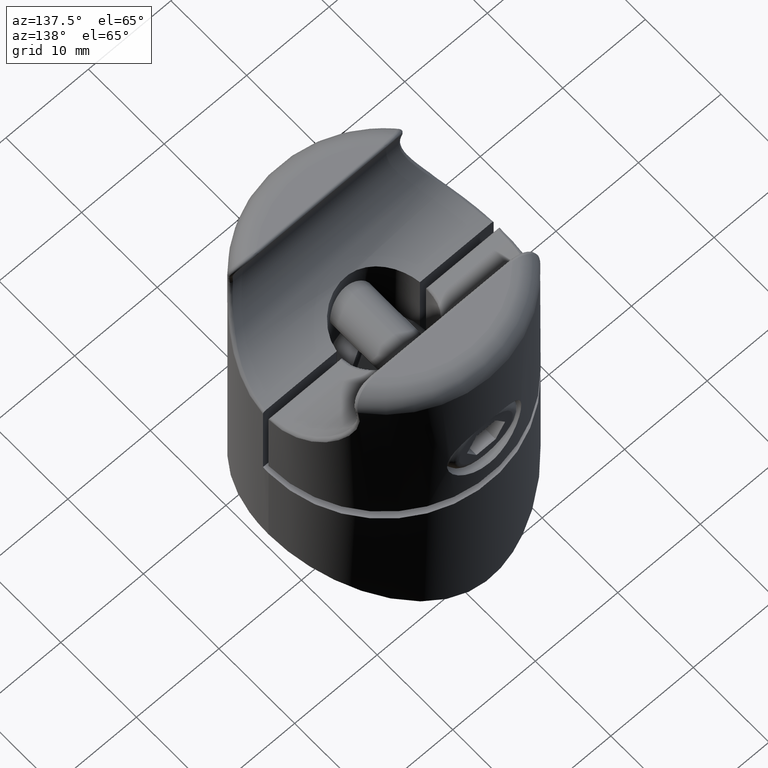
[diagram: clean part render]
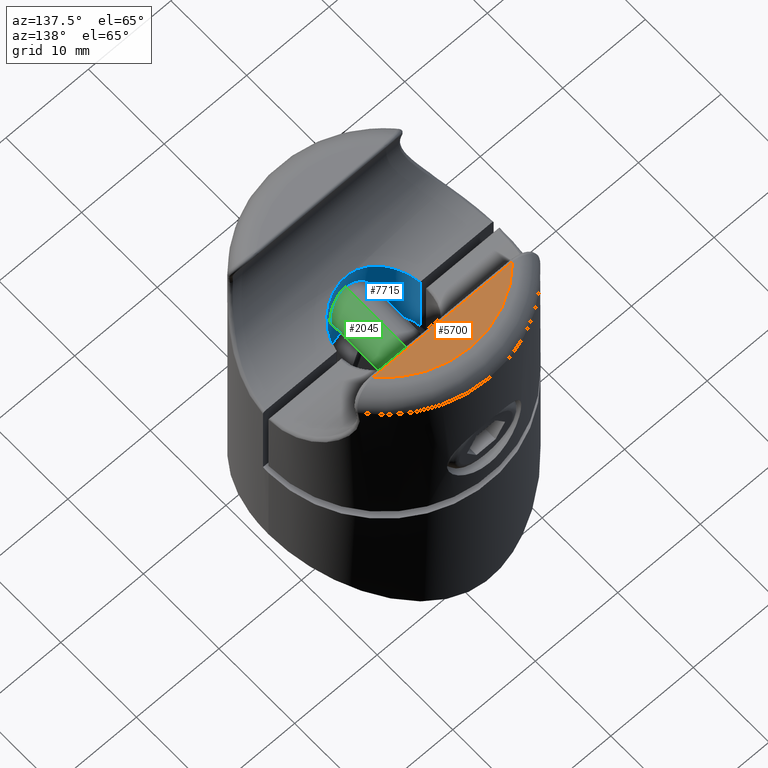
[diagram: same view with three faces highlighted in distinct colors, each labeled with its STEP entity id]
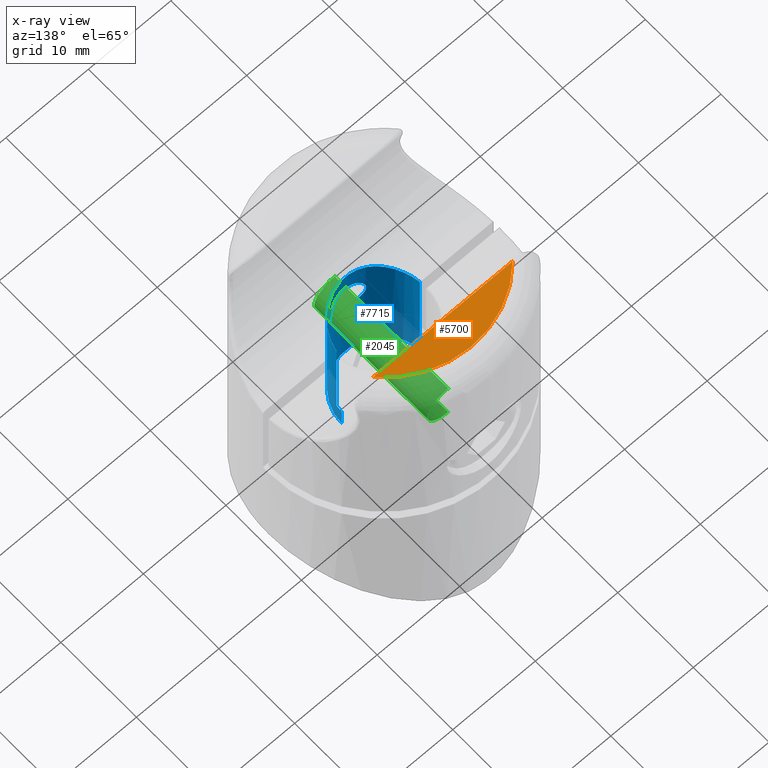
[diagram: x-ray of the same camera — body ghosted, the three highlighted faces saturated]
A machine part, auxiliary view with three faces highlighted in distinct colors.
The next image is the same camera in x-ray (body ghosted, the three faces saturated) — at least one of them is partly hidden behind the body in this view.
Their STEP definitions:

[orange] entity #5700 — the highlighted planar face has unit normal (0, 0, 1).
#964 = ORIENTED_EDGE ( 'NONE', *, *, #4711, .T. ) ;
#1218 = CARTESIAN_POINT ( 'NONE',  ( 8.466754833147170700, 8.532291603080610187, 11.50000000000000000 ) ) ;
#1510 = CARTESIAN_POINT ( 'NONE',  ( 8.875859768070236910, 8.532291603080610187, 11.50000000000000000 ) ) ;
#3239 = DIRECTION ( 'NONE',  ( 1.000000000000000000, -0.000000000000000000, -0.000000000000000000 ) ) ;
#3410 = EDGE_CURVE ( 'NONE', #9964, #18486, #16656, .T. ) ;
#3686 = DIRECTION ( 'NONE',  ( 1.000000000000000000, 0.000000000000000000, 0.000000000000000000 ) ) ;
#4711 = EDGE_CURVE ( 'NONE', #18486, #9964, #13640, .T. ) ;
#4983 = AXIS2_PLACEMENT_3D ( 'NONE', #11130, #14451, #12763 ) ;
#5700 = ADVANCED_FACE ( 'NONE', ( #19857 ), #15835, .T. ) ;
#5897 = VECTOR ( 'NONE', #3239, 1000.000000000000000 ) ;
#6545 = EDGE_LOOP ( 'NONE', ( #964, #18851 ) ) ;
#6853 = DIRECTION ( 'NONE',  ( 0.000000000000000000, 0.000000000000000000, 1.000000000000000000 ) ) ;
#8468 = CARTESIAN_POINT ( 'NONE',  ( 0.000000000000000000, 0.7500000000000000000, 11.50000000000000000 ) ) ;
#9964 = VERTEX_POINT ( 'NONE', #11361 ) ;
#11130 = CARTESIAN_POINT ( 'NONE',  ( 0.000000000000000000, 0.7500000000000000000, 11.50000000000000000 ) ) ;
#11361 = CARTESIAN_POINT ( 'NONE',  ( -8.466754833147170700, 8.532291603080610187, 11.50000000000000000 ) ) ;
#12763 = DIRECTION ( 'NONE',  ( 1.000000000000000000, 0.000000000000000000, -0.000000000000000000 ) ) ;
#13308 = AXIS2_PLACEMENT_3D ( 'NONE', #8468, #6853, #3686 ) ;
#13640 = CIRCLE ( 'NONE', #13308, 11.49999999999999822 ) ;
#14451 = DIRECTION ( 'NONE',  ( 0.000000000000000000, 0.000000000000000000, 1.000000000000000000 ) ) ;
#15835 = PLANE ( 'NONE',  #4983 ) ;
#16656 = LINE ( 'NONE', #1510, #5897 ) ;
#18486 = VERTEX_POINT ( 'NONE', #1218 ) ;
#18851 = ORIENTED_EDGE ( 'NONE', *, *, #3410, .T. ) ;
#19857 = FACE_OUTER_BOUND ( 'NONE', #6545, .T. ) ;

[blue] entity #7715 — the highlighted cylindrical surface (partial cylindrical patch) has radius 5.1 mm, axis along (0, 0, -1).
#25 = LINE ( 'NONE', #19126, #10806 ) ;
#326 = AXIS2_PLACEMENT_3D ( 'NONE', #6580, #9802, #11392 ) ;
#503 = VECTOR ( 'NONE', #18704, 1000.000000000000000 ) ;
#624 = CARTESIAN_POINT ( 'NONE',  ( -1.058324974039478006, -4.990330198489021818, 0.9310890432276512918 ) ) ;
#688 = ORIENTED_EDGE ( 'NONE', *, *, #18628, .F. ) ;
#762 = CARTESIAN_POINT ( 'NONE',  ( -0.9362209961879750519, -5.014983502759267964, 0.8652033509691706703 ) ) ;
#840 = CARTESIAN_POINT ( 'NONE',  ( -2.099970334657900395, -4.647593419675719595, 2.611134068806382214 ) ) ;
#853 = CARTESIAN_POINT ( 'NONE',  ( 5.939650175596017700E-16, -5.099999999999999645, 0.6500000000000054623 ) ) ;
#1048 = CARTESIAN_POINT ( 'NONE',  ( -1.522775329754811224, -4.876770204915720441, 7.184743354017673056 ) ) ;
#1079 = CARTESIAN_POINT ( 'NONE',  ( 1.884590587738744327, -4.739371806368707141, 1.813249709323770942 ) ) ;
#1087 = VERTEX_POINT ( 'NONE', #15431 ) ;
#1113 = CARTESIAN_POINT ( 'NONE',  ( 4.727944327428127202, -1.936726784486503261, 5.955879604610769817 ) ) ;
#1134 = CARTESIAN_POINT ( 'NONE',  ( 5.099999999999999645, 6.245698675651500839E-16, 18.75000000000000000 ) ) ;
#1173 = B_SPLINE_CURVE_WITH_KNOTS ( 'NONE', 3,
 ( #19111, #2745, #4759, #20372, #10795, #3142, #12415, #9206, #17581, #12754, #1609, #12824, #12348, #4827, #7999, #9070, #20230, #4357, #15548, #1079, #17243, #5972, #19176, #3211, #9546, #1549, #20301, #10729, #15620, #17174 ),
 .UNSPECIFIED., .F., .F.,
 ( 4, 2, 2, 2, 2, 2, 2, 2, 2, 2, 2, 2, 2, 2, 4 ),
 ( 1.117477454623231441E-20, 0.0004150183347824037473, 0.0008300366695648074946, 0.001245055004347211296, 0.001660073339129614989, 0.002490110008694422158, 0.002905128343476825418, 0.003320146678259227810, 0.003735165013041630202, 0.004150183347824031727, 0.004565201682606433685, 0.004980220017388833909, 0.005395238352171235867, 0.005810256686953637825, 0.006640293356518440875 ),
 .UNSPECIFIED. ) ;
#1184 = CARTESIAN_POINT ( 'NONE',  ( -4.926727477309573722, -1.353437353269471011, 5.847430210650401250 ) ) ;
#1203 = DIRECTION ( 'NONE',  ( -1.421085471520200372E-14, 1.000000000000000000, -1.700709290173340409E-16 ) ) ;
#1375 = CARTESIAN_POINT ( 'NONE',  ( 5.044551516240069589, -0.7499999999999997780, -5.749999999999994671 ) ) ;
#1549 = CARTESIAN_POINT ( 'NONE',  ( 1.056860682995336864, -4.990655327738765301, 0.9301848990327671318 ) ) ;
#1609 = CARTESIAN_POINT ( 'NONE',  ( 1.832703404059226937, -4.760686105595080875, 3.811018035582158348 ) ) ;
#1660 = ORIENTED_EDGE ( 'NONE', *, *, #12442, .F. ) ;
#1829 = DIRECTION ( 'NONE',  ( 0.000000000000000000, 0.000000000000000000, -1.000000000000000000 ) ) ;
#2233 = EDGE_CURVE ( 'NONE', #13168, #3237, #3380, .T. ) ;
#2294 = CARTESIAN_POINT ( 'NONE',  ( -1.668019159702798238, -4.820190265308835542, 4.033069915082044155 ) ) ;
#2361 = CARTESIAN_POINT ( 'NONE',  ( -1.582735638642827958, -4.849241594949084799, 1.363046768596536173 ) ) ;
#2570 = CARTESIAN_POINT ( 'NONE',  ( 1.227535980252621339, -4.959571814902814069, 7.239530723996619344 ) ) ;
#2638 = CARTESIAN_POINT ( 'NONE',  ( 3.113303434567240124, -4.050356833406222989, 6.710049737090006516 ) ) ;
#2745 = CARTESIAN_POINT ( 'NONE',  ( 0.1404383798457451149, -5.100000000000000533, 4.849999999999992539 ) ) ;
#2846 = CARTESIAN_POINT ( 'NONE',  ( 0.6239015136069436807, -5.070990442833838152, 7.314305193080004486 ) ) ;
#3142 = CARTESIAN_POINT ( 'NONE',  ( 0.9368681101514473308, -5.014857309744007452, 4.634460374151095685 ) ) ;
#3211 = CARTESIAN_POINT ( 'NONE',  ( 1.388384815992148136, -4.908407356490961604, 1.168602447833218649 ) ) ;
#3237 = VERTEX_POINT ( 'NONE', #10203 ) ;
#3254 = B_SPLINE_CURVE_WITH_KNOTS ( 'NONE', 3,
 ( #13655, #18195, #10148, #13513, #19856, #762, #624, #11964, #3970, #2361, #8614, #10220, #18265, #13587, #18337, #15193, #840, #5588, #16791, #10288, #11899, #2294, #16588, #7215, #15126, #5514, #5316, #18401, #18132, #5379, #8839, #10425 ),
 .UNSPECIFIED., .F., .F.,
 ( 4, 2, 2, 2, 2, 2, 2, 2, 2, 2, 2, 2, 2, 2, 2, 4 ),
 ( 0.006640293356518440875, 0.007054996195820101464, 0.007469699035121762053, 0.007884401874423421774, 0.008299104713725082363, 0.008713807553026742952, 0.009128510392328403542, 0.009543213231630064131, 0.009957916070931724720, 0.01078732174953504590, 0.01120202458883670649, 0.01161672742813836708, 0.01203143026744002766, 0.01244613310674168825, 0.01286083594604334884, 0.01327553878534500943 ),
 .UNSPECIFIED. ) ;
#3380 = CIRCLE ( 'NONE', #6729, 5.099999999999999645 ) ;
#3815 = EDGE_LOOP ( 'NONE', ( #14014, #688 ) ) ;
#3951 = B_SPLINE_CURVE_WITH_KNOTS ( 'NONE', 3,
 ( #18256, #20471, #12168, #1113, #20405, #15590, #9244, #7703, #12451, #2638, #15524, #4457, #7564, #18876, #2570, #2846, #14069, #18811, #17278, #9306, #1048, #9042, #20201, #10697, #17210, #13798, #15381, #5792, #6013, #1184, #17002, #7423 ),
 .UNSPECIFIED., .F., .F.,
 ( 4, 2, 2, 2, 2, 2, 2, 2, 2, 2, 2, 2, 2, 2, 2, 4 ),
 ( 0.01705794424482550212, 0.01798200267743625333, 0.01890606111004700454, 0.01983011954265775229, 0.02075417797526850350, 0.02167823640787925471, 0.02260229484049000592, 0.02352635327310075714, 0.02445041170571150835, 0.02537447013832225956, 0.02629852857093301077, 0.02814664543615451320, 0.02907070386876526441, 0.02999476230137601909, 0.03091882073398677377, 0.03184287916659752499 ),
 .UNSPECIFIED. ) ;
#3970 = CARTESIAN_POINT ( 'NONE',  ( -1.389548159784840697, -4.908090469790977295, 1.169542066498068689 ) ) ;
#4357 = CARTESIAN_POINT ( 'NONE',  ( 2.031645188625957665, -4.677959186847076900, 2.200916204441360602 ) ) ;
#4457 = CARTESIAN_POINT ( 'NONE',  ( 2.360781317144719171, -4.530418230611480190, 6.971464051804823647 ) ) ;
#4475 = EDGE_CURVE ( 'NONE', #18268, #1087, #3951, .T. ) ;
#4759 = CARTESIAN_POINT ( 'NONE',  ( 0.2782371955955479370, -5.094213806708957293, 4.836056520450588536 ) ) ;
#4827 = CARTESIAN_POINT ( 'NONE',  ( 2.086204692278037953, -4.653884293845816700, 3.027417859520242338 ) ) ;
#5316 = CARTESIAN_POINT ( 'NONE',  ( -0.9377519193827802413, -5.014723810352888833, 4.634116699090348845 ) ) ;
#5379 = CARTESIAN_POINT ( 'NONE',  ( -0.2799381805258382427, -5.094112362984466458, 4.835809135821095950 ) ) ;
#5514 = CARTESIAN_POINT ( 'NONE',  ( -1.057777670376125689, -4.990441717583460779, 4.569209742283733000 ) ) ;
#5588 = CARTESIAN_POINT ( 'NONE',  ( -2.100059186464586780, -4.647553272160611648, 3.026383839078404137 ) ) ;
#5792 = CARTESIAN_POINT ( 'NONE',  ( -4.604010879354332175, -2.214153063484531003, 6.022374473885055757 ) ) ;
#5972 = CARTESIAN_POINT ( 'NONE',  ( 1.668221805365019517, -4.820118242819451559, 1.467212146478755308 ) ) ;
#6013 = CARTESIAN_POINT ( 'NONE',  ( -4.728566261257086900, -1.935225417826927918, 5.955544695340035943 ) ) ;
#6470 = CARTESIAN_POINT ( 'NONE',  ( -5.044551516240069589, -0.7499999999999997780, -5.749999999999998224 ) ) ;
#6542 = LINE ( 'NONE', #13925, #12809 ) ;
#6580 = CARTESIAN_POINT ( 'NONE',  ( 0.000000000000000000, 0.000000000000000000, -8.249999999999998224 ) ) ;
#6729 = AXIS2_PLACEMENT_3D ( 'NONE', #12335, #15400, #1203 ) ;
#6899 = ORIENTED_EDGE ( 'NONE', *, *, #4475, .F. ) ;
#7215 = CARTESIAN_POINT ( 'NONE',  ( -1.389366842906204491, -4.908136053044440672, 4.330581406184570881 ) ) ;
#7232 = ORIENTED_EDGE ( 'NONE', *, *, #2233, .T. ) ;
#7423 = CARTESIAN_POINT ( 'NONE',  ( -5.044551516240070477, -0.7499999999999995559, 5.781304442673956601 ) ) ;
#7564 = CARTESIAN_POINT ( 'NONE',  ( 2.092785570995263633, -4.660690296668343002, 7.049738328825301714 ) ) ;
#7703 = CARTESIAN_POINT ( 'NONE',  ( 3.767606572484827776, -3.450124305703898386, 6.433902054928879011 ) ) ;
#7715 = ADVANCED_FACE ( 'NONE', ( #18352, #14112 ), #15343, .F. ) ;
#7729 = CARTESIAN_POINT ( 'NONE',  ( -5.099999999999999645, 0.000000000000000000, -8.249999999999998224 ) ) ;
#7744 = ORIENTED_EDGE ( 'NONE', *, *, #16393, .T. ) ;
#7999 = CARTESIAN_POINT ( 'NONE',  ( 2.099911178458104377, -4.647620149280246693, 2.890101151305006333 ) ) ;
#8084 = EDGE_CURVE ( 'NONE', #11790, #16244, #1173, .T. ) ;
#8214 = DIRECTION ( 'NONE',  ( 0.000000000000000000, 0.000000000000000000, -1.000000000000000000 ) ) ;
#8248 = ORIENTED_EDGE ( 'NONE', *, *, #12521, .T. ) ;
#8332 = CARTESIAN_POINT ( 'NONE',  ( -5.044551516240069589, -0.7499999999999997780, 18.75000000000000000 ) ) ;
#8453 = DIRECTION ( 'NONE',  ( 0.000000000000000000, 1.176083712526648949E-16, 1.000000000000000000 ) ) ;
#8527 = LINE ( 'NONE', #1134, #503 ) ;
#8614 = CARTESIAN_POINT ( 'NONE',  ( -1.668590006092086631, -4.819986903224767971, 1.467730190361120624 ) ) ;
#8723 = EDGE_CURVE ( 'NONE', #14994, #15240, #6542, .T. ) ;
#8839 = CARTESIAN_POINT ( 'NONE',  ( -0.1403316190825426579, -5.099999999999999645, 4.849999999999993427 ) ) ;
#9042 = CARTESIAN_POINT ( 'NONE',  ( -2.372516420328416142, -4.555007703739528679, 6.983669603769895318 ) ) ;
#9044 = EDGE_CURVE ( 'NONE', #18268, #13168, #25, .T. ) ;
#9070 = CARTESIAN_POINT ( 'NONE',  ( 2.100087969366200902, -4.647540266671436271, 2.612574343975953450 ) ) ;
#9206 = CARTESIAN_POINT ( 'NONE',  ( 1.284107575974287485, -4.937072472589844274, 4.417267665974953239 ) ) ;
#9207 = ORIENTED_EDGE ( 'NONE', *, *, #9044, .T. ) ;
#9244 = CARTESIAN_POINT ( 'NONE',  ( 4.142633997710905014, -2.989448205078897303, 6.257412515259235697 ) ) ;
#9306 = CARTESIAN_POINT ( 'NONE',  ( -1.223365334167772378, -4.960636983959708424, 7.240236172888097066 ) ) ;
#9546 = CARTESIAN_POINT ( 'NONE',  ( 1.283833561704537551, -4.937141530216621277, 1.082530992548649706 ) ) ;
#9684 = CARTESIAN_POINT ( 'NONE',  ( -5.099999999999999645, -2.040180025833936330E-31, -5.749999999999998224 ) ) ;
#9755 = DIRECTION ( 'NONE',  ( -1.000000000000000000, 0.000000000000000000, 0.000000000000000000 ) ) ;
#9802 = DIRECTION ( 'NONE',  ( 0.000000000000000000, 0.000000000000000000, 1.000000000000000000 ) ) ;
#10148 = CARTESIAN_POINT ( 'NONE',  ( -0.2784871846559245911, -5.094219738875483294, 0.6639266523821445443 ) ) ;
#10203 = CARTESIAN_POINT ( 'NONE',  ( 5.099999999999999645, 6.245698675651498867E-16, -5.749999999999998224 ) ) ;
#10220 = CARTESIAN_POINT ( 'NONE',  ( -1.819719935794367638, -4.764985384128812562, 1.693104627498889903 ) ) ;
#10288 = CARTESIAN_POINT ( 'NONE',  ( -1.885593958338568799, -4.738964402956085564, 3.684507666911090329 ) ) ;
#10425 = CARTESIAN_POINT ( 'NONE',  ( 3.252614275303981863E-16, -5.099999999999999645, 4.849999999999992539 ) ) ;
#10697 = CARTESIAN_POINT ( 'NONE',  ( -3.562681131281607350, -3.661235580826103231, 6.525572248819432986 ) ) ;
#10729 = CARTESIAN_POINT ( 'NONE',  ( 0.5560134727191041737, -5.076041175195391553, 0.7065630019784056026 ) ) ;
#10795 = CARTESIAN_POINT ( 'NONE',  ( 0.6831036484005171827, -5.055678500305725187, 4.740548206677330789 ) ) ;
#10806 = VECTOR ( 'NONE', #8214, 1000.000000000000000 ) ;
#11123 = AXIS2_PLACEMENT_3D ( 'NONE', #19691, #8453, #14897 ) ;
#11392 = DIRECTION ( 'NONE',  ( 1.000000000000000000, 0.000000000000000000, 0.000000000000000000 ) ) ;
#11531 = ORIENTED_EDGE ( 'NONE', *, *, #8723, .F. ) ;
#11790 = VERTEX_POINT ( 'NONE', #19190 ) ;
#11859 = CIRCLE ( 'NONE', #326, 5.099999999999999645 ) ;
#11881 = VERTEX_POINT ( 'NONE', #6470 ) ;
#11899 = CARTESIAN_POINT ( 'NONE',  ( -1.819802055341623426, -4.764959872893800075, 3.806823922656311865 ) ) ;
#11964 = CARTESIAN_POINT ( 'NONE',  ( -1.284051158378101132, -4.937069967429568607, 1.082756333942149984 ) ) ;
#12168 = CARTESIAN_POINT ( 'NONE',  ( 4.926231638191224782, -1.355215867635509275, 5.847705120674942414 ) ) ;
#12335 = CARTESIAN_POINT ( 'NONE',  ( 0.000000000000000000, 0.000000000000000000, -5.749999999999998224 ) ) ;
#12348 = CARTESIAN_POINT ( 'NONE',  ( 2.031646802211388270, -4.677958989736007211, 3.299201199860249289 ) ) ;
#12415 = CARTESIAN_POINT ( 'NONE',  ( 1.056955091078038755, -4.990637514558952326, 4.569769126049879837 ) ) ;
#12442 = EDGE_CURVE ( 'NONE', #15240, #16817, #11859, .T. ) ;
#12451 = CARTESIAN_POINT ( 'NONE',  ( 3.562024933678102467, -3.661970388392588927, 6.525879160510664967 ) ) ;
#12521 = EDGE_CURVE ( 'NONE', #11881, #1087, #19846, .T. ) ;
#12754 = CARTESIAN_POINT ( 'NONE',  ( 1.677278110050492321, -4.820450896524121731, 4.042309036973300351 ) ) ;
#12809 = VECTOR ( 'NONE', #16841, 1000.000000000000000 ) ;
#12824 = CARTESIAN_POINT ( 'NONE',  ( 1.990499484151729837, -4.695864701458698498, 3.433046164883387874 ) ) ;
#13168 = VERTEX_POINT ( 'NONE', #1375 ) ;
#13358 = VECTOR ( 'NONE', #16367, 1000.000000000000000 ) ;
#13513 = CARTESIAN_POINT ( 'NONE',  ( -0.5505664645853578509, -5.072031784998999981, 0.7187113224031574932 ) ) ;
#13587 = CARTESIAN_POINT ( 'NONE',  ( -1.991087097167030473, -4.695617901759002955, 2.068543626704853367 ) ) ;
#13655 = CARTESIAN_POINT ( 'NONE',  ( 5.939650175596017700E-16, -5.099999999999999645, 0.6500000000000054623 ) ) ;
#13798 = CARTESIAN_POINT ( 'NONE',  ( -4.147254033928905237, -2.983192802577831593, 6.255169502328491227 ) ) ;
#13925 = CARTESIAN_POINT ( 'NONE',  ( -5.099999999999999645, 0.000000000000000000, 18.75000000000000000 ) ) ;
#14014 = ORIENTED_EDGE ( 'NONE', *, *, #8084, .F. ) ;
#14069 = CARTESIAN_POINT ( 'NONE',  ( 0.3136376578348930022, -5.099927091664761214, 7.334425600973048631 ) ) ;
#14112 = FACE_OUTER_BOUND ( 'NONE', #20735, .T. ) ;
#14214 = CARTESIAN_POINT ( 'NONE',  ( 5.099999999999999645, 6.245698675651500839E-16, -8.249999999999998224 ) ) ;
#14279 = AXIS2_PLACEMENT_3D ( 'NONE', #16248, #1829, #9755 ) ;
#14897 = DIRECTION ( 'NONE',  ( 0.000000000000000000, 1.000000000000000000, -1.700709290173340409E-16 ) ) ;
#14994 = VERTEX_POINT ( 'NONE', #9684 ) ;
#15126 = CARTESIAN_POINT ( 'NONE',  ( -1.283132824141876016, -4.937304152283247483, 4.417929207723184426 ) ) ;
#15193 = CARTESIAN_POINT ( 'NONE',  ( -2.085869672984259626, -4.654034674353435541, 2.470295985790662563 ) ) ;
#15240 = VERTEX_POINT ( 'NONE', #7729 ) ;
#15343 = CYLINDRICAL_SURFACE ( 'NONE', #14279, 5.099999999999999645 ) ;
#15381 = CARTESIAN_POINT ( 'NONE',  ( -4.313758423841650647, -2.736946880464833587, 6.171944108007639151 ) ) ;
#15400 = DIRECTION ( 'NONE',  ( 0.000000000000000000, 1.176083712526648949E-16, 1.000000000000000000 ) ) ;
#15431 = CARTESIAN_POINT ( 'NONE',  ( -5.044551516240070477, -0.7499999999999995559, 5.781304442673956601 ) ) ;
#15524 = CARTESIAN_POINT ( 'NONE',  ( 2.870056645536624540, -4.226198365321659267, 6.802072080185048719 ) ) ;
#15548 = CARTESIAN_POINT ( 'NONE',  ( 1.991294675206794373, -4.695537489882188886, 2.068877171892957723 ) ) ;
#15590 = CARTESIAN_POINT ( 'NONE',  ( 4.312853376028230379, -2.738555956560441373, 6.172409443910226834 ) ) ;
#15620 = CARTESIAN_POINT ( 'NONE',  ( 0.2766636326698443948, -5.099999999999999645, 0.6500000000000056843 ) ) ;
#15712 = ORIENTED_EDGE ( 'NONE', *, *, #17712, .T. ) ;
#16244 = VERTEX_POINT ( 'NONE', #853 ) ;
#16248 = CARTESIAN_POINT ( 'NONE',  ( 0.000000000000000000, 0.000000000000000000, 18.75000000000000000 ) ) ;
#16367 = DIRECTION ( 'NONE',  ( -0.000000000000000000, -0.000000000000000000, 1.000000000000000000 ) ) ;
#16393 = EDGE_CURVE ( 'NONE', #3237, #16817, #8527, .T. ) ;
#16588 = CARTESIAN_POINT ( 'NONE',  ( -1.582024556782188673, -4.849467810090086317, 4.137723354088154615 ) ) ;
#16791 = CARTESIAN_POINT ( 'NONE',  ( -2.043742613456679180, -4.673982122641529457, 3.305151106362438362 ) ) ;
#16817 = VERTEX_POINT ( 'NONE', #14214 ) ;
#16841 = DIRECTION ( 'NONE',  ( 0.000000000000000000, 0.000000000000000000, -1.000000000000000000 ) ) ;
#16883 = CARTESIAN_POINT ( 'NONE',  ( 5.044551516240069589, -0.7499999999999997780, 5.781304442673952160 ) ) ;
#17002 = CARTESIAN_POINT ( 'NONE',  ( -4.999144342808814478, -1.055411767441082782, 5.806844257702430845 ) ) ;
#17174 = CARTESIAN_POINT ( 'NONE',  ( 5.939650175596017700E-16, -5.099999999999999645, 0.6500000000000054623 ) ) ;
#17210 = CARTESIAN_POINT ( 'NONE',  ( -3.770800044763302772, -3.446769841707570059, 6.432466583186013942 ) ) ;
#17243 = CARTESIAN_POINT ( 'NONE',  ( 1.819791158334552073, -4.764962120175100679, 1.693179859633458628 ) ) ;
#17278 = CARTESIAN_POINT ( 'NONE',  ( -0.6185209138488385605, -5.071683537702631028, 7.314779887654743185 ) ) ;
#17581 = CARTESIAN_POINT ( 'NONE',  ( 1.390262817513482574, -4.907868322836621999, 4.329715298594591921 ) ) ;
#17712 = EDGE_CURVE ( 'NONE', #14994, #11881, #19244, .T. ) ;
#18132 = CARTESIAN_POINT ( 'NONE',  ( -0.5499360290692816289, -5.072072211193252578, 4.781387579937017129 ) ) ;
#18195 = CARTESIAN_POINT ( 'NONE',  ( -0.1382266569739030726, -5.099999999999998757, 0.6500000000000054623 ) ) ;
#18256 = CARTESIAN_POINT ( 'NONE',  ( 5.044551516240069589, -0.7499999999999997780, 5.781304442673952160 ) ) ;
#18265 = CARTESIAN_POINT ( 'NONE',  ( -1.885539203739810432, -4.738986940157661643, 1.815359679678942850 ) ) ;
#18268 = VERTEX_POINT ( 'NONE', #16883 ) ;
#18337 = CARTESIAN_POINT ( 'NONE',  ( -2.031248428267063311, -4.678132198369572059, 2.199439875306187009 ) ) ;
#18352 = FACE_BOUND ( 'NONE', #3815, .T. ) ;
#18401 = CARTESIAN_POINT ( 'NONE',  ( -0.6815543783940692935, -5.055919024837933762, 4.741170014687111411 ) ) ;
#18628 = EDGE_CURVE ( 'NONE', #16244, #11790, #3254, .T. ) ;
#18704 = DIRECTION ( 'NONE',  ( 0.000000000000000000, 0.000000000000000000, -1.000000000000000000 ) ) ;
#18811 = CARTESIAN_POINT ( 'NONE',  ( -0.3112620634416301546, -5.100072631695590886, 7.334525695599113604 ) ) ;
#18876 = CARTESIAN_POINT ( 'NONE',  ( 1.526285646055527412, -4.875678169677454932, 7.184035009878029676 ) ) ;
#19111 = CARTESIAN_POINT ( 'NONE',  ( 3.252614275303981863E-16, -5.099999999999999645, 4.849999999999992539 ) ) ;
#19126 = CARTESIAN_POINT ( 'NONE',  ( 5.044551516240069589, -0.7499999999999997780, 18.75000000000000000 ) ) ;
#19176 = CARTESIAN_POINT ( 'NONE',  ( 1.580443530111153905, -4.849976641455293169, 1.360529286596354748 ) ) ;
#19190 = CARTESIAN_POINT ( 'NONE',  ( 3.252614275303981863E-16, -5.099999999999999645, 4.849999999999992539 ) ) ;
#19244 = CIRCLE ( 'NONE', #11123, 5.099999999999999645 ) ;
#19691 = CARTESIAN_POINT ( 'NONE',  ( 0.000000000000000000, 0.000000000000000000, -5.749999999999998224 ) ) ;
#19846 = LINE ( 'NONE', #8332, #13358 ) ;
#19856 = CARTESIAN_POINT ( 'NONE',  ( -0.6820381831837541986, -5.055827647708161621, 0.7590725581828825508 ) ) ;
#20201 = CARTESIAN_POINT ( 'NONE',  ( -2.892549367526052073, -4.241760182095732468, 6.800729479482303219 ) ) ;
#20230 = CARTESIAN_POINT ( 'NONE',  ( 2.086058675463554835, -4.653949240032297929, 2.471729646682722326 ) ) ;
#20301 = CARTESIAN_POINT ( 'NONE',  ( 0.9346056995064017103, -5.015261552001171630, 0.8644739134309761264 ) ) ;
#20372 = CARTESIAN_POINT ( 'NONE',  ( 0.5488591615656198686, -5.072197143866014279, 4.781699132325646140 ) ) ;
#20405 = CARTESIAN_POINT ( 'NONE',  ( 4.604747561887434060, -2.212847229616746514, 6.021995897485459714 ) ) ;
#20471 = CARTESIAN_POINT ( 'NONE',  ( 4.999303399310556451, -1.054341942485135908, 5.806754794445277312 ) ) ;
#20735 = EDGE_LOOP ( 'NONE', ( #7232, #7744, #1660, #11531, #15712, #8248, #6899, #9207 ) ) ;

[green] entity #2045 — the highlighted cylindrical surface (edge-blend (fillet) strip) has radius 2.5 mm, axis along (0, 1, 0).
#267 = AXIS2_PLACEMENT_3D ( 'NONE', #14536, #16116, #8155 ) ;
#456 = LINE ( 'NONE', #5757, #18508 ) ;
#767 = LINE ( 'NONE', #3761, #10798 ) ;
#1211 = CARTESIAN_POINT ( 'NONE',  ( 0.000000000000000000, 0.000000000000000000, 0.000000000000000000 ) ) ;
#1481 = DIRECTION ( 'NONE',  ( 0.000000000000000000, 1.000000000000000000, 0.000000000000000000 ) ) ;
#2045 = ADVANCED_FACE ( 'NONE', ( #9696 ), #16693, .T. ) ;
#2685 = CARTESIAN_POINT ( 'NONE',  ( 0.000000000000000000, -14.99999999999999645, 2.500000000000000000 ) ) ;
#3101 = CIRCLE ( 'NONE', #17064, 2.500000000000000000 ) ;
#3761 = CARTESIAN_POINT ( 'NONE',  ( 3.061616997868383141E-16, -16.00000000000000000, -2.500000000000000000 ) ) ;
#4033 = EDGE_CURVE ( 'NONE', #7214, #20759, #3101, .T. ) ;
#4697 = ORIENTED_EDGE ( 'NONE', *, *, #20288, .T. ) ;
#5687 = DIRECTION ( 'NONE',  ( -0.000000000000000000, 1.000000000000000000, -0.000000000000000000 ) ) ;
#5706 = VERTEX_POINT ( 'NONE', #19183 ) ;
#5757 = CARTESIAN_POINT ( 'NONE',  ( 0.000000000000000000, -16.00000000000000000, 2.500000000000000000 ) ) ;
#6415 = ORIENTED_EDGE ( 'NONE', *, *, #9164, .T. ) ;
#7214 = VERTEX_POINT ( 'NONE', #11234 ) ;
#7377 = DIRECTION ( 'NONE',  ( -0.000000000000000000, -1.000000000000000000, -0.000000000000000000 ) ) ;
#7989 = CIRCLE ( 'NONE', #15433, 2.500000000000000000 ) ;
#8155 = DIRECTION ( 'NONE',  ( 0.000000000000000000, 0.000000000000000000, 1.000000000000000000 ) ) ;
#8617 = DIRECTION ( 'NONE',  ( -0.000000000000000000, 1.000000000000000000, -0.000000000000000000 ) ) ;
#9164 = EDGE_CURVE ( 'NONE', #5706, #7214, #767, .T. ) ;
#9696 = FACE_OUTER_BOUND ( 'NONE', #11563, .T. ) ;
#10238 = VERTEX_POINT ( 'NONE', #2685 ) ;
#10798 = VECTOR ( 'NONE', #8617, 1000.000000000000000 ) ;
#11234 = CARTESIAN_POINT ( 'NONE',  ( 3.061616997868383141E-16, 0.000000000000000000, -2.500000000000000000 ) ) ;
#11563 = EDGE_LOOP ( 'NONE', ( #4697, #6415, #15942, #19813 ) ) ;
#14242 = CARTESIAN_POINT ( 'NONE',  ( 0.000000000000000000, -14.99999999999999645, 0.000000000000000000 ) ) ;
#14534 = CARTESIAN_POINT ( 'NONE',  ( 0.000000000000000000, 0.000000000000000000, 2.500000000000000000 ) ) ;
#14536 = CARTESIAN_POINT ( 'NONE',  ( 0.000000000000000000, -16.00000000000000000, 0.000000000000000000 ) ) ;
#15433 = AXIS2_PLACEMENT_3D ( 'NONE', #14242, #1481, #15885 ) ;
#15885 = DIRECTION ( 'NONE',  ( 0.000000000000000000, 0.000000000000000000, -1.000000000000000000 ) ) ;
#15942 = ORIENTED_EDGE ( 'NONE', *, *, #4033, .T. ) ;
#16116 = DIRECTION ( 'NONE',  ( -0.000000000000000000, 1.000000000000000000, -0.000000000000000000 ) ) ;
#16693 = CYLINDRICAL_SURFACE ( 'NONE', #267, 2.500000000000000000 ) ;
#17064 = AXIS2_PLACEMENT_3D ( 'NONE', #1211, #7377, #18566 ) ;
#18273 = EDGE_CURVE ( 'NONE', #10238, #20759, #456, .T. ) ;
#18508 = VECTOR ( 'NONE', #5687, 1000.000000000000000 ) ;
#18566 = DIRECTION ( 'NONE',  ( 0.000000000000000000, 0.000000000000000000, 1.000000000000000000 ) ) ;
#19183 = CARTESIAN_POINT ( 'NONE',  ( 3.061616997868383141E-16, -14.99999999999999645, -2.500000000000000000 ) ) ;
#19813 = ORIENTED_EDGE ( 'NONE', *, *, #18273, .F. ) ;
#20288 = EDGE_CURVE ( 'NONE', #10238, #5706, #7989, .T. ) ;
#20759 = VERTEX_POINT ( 'NONE', #14534 ) ;